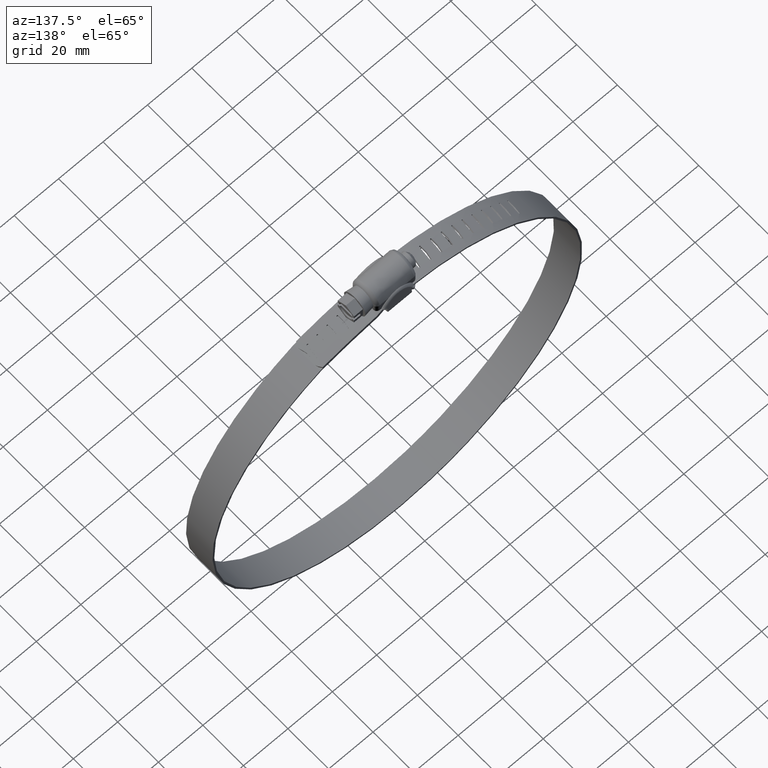
[diagram: clean part render]
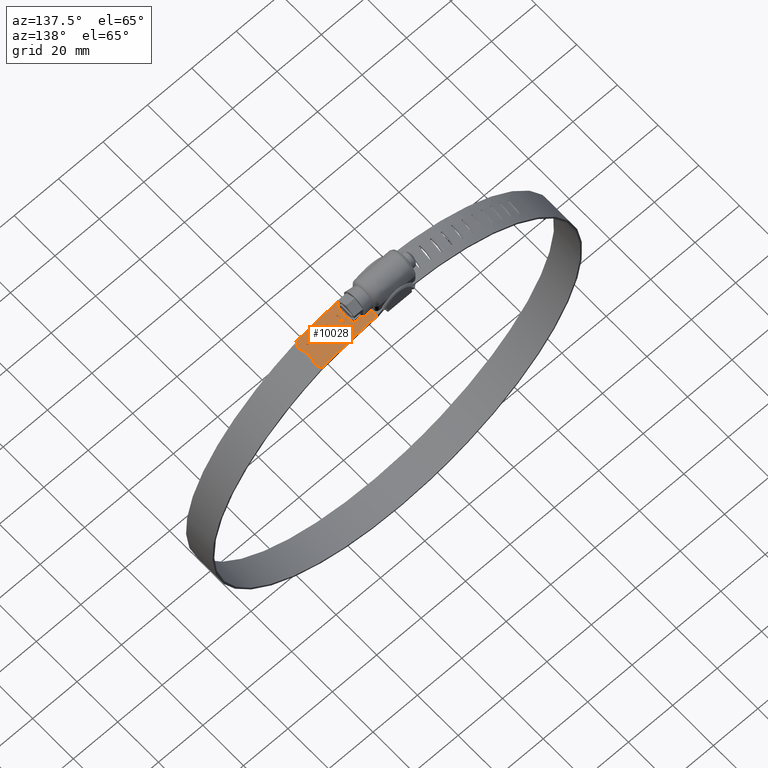
[diagram: same view with one face highlighted and labeled with its STEP entity id]
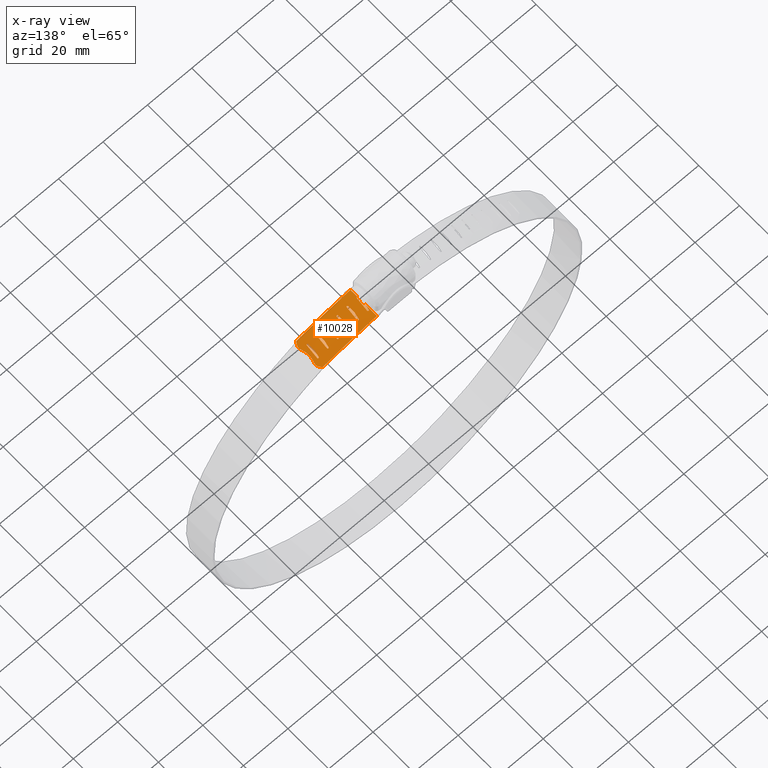
[diagram: x-ray of the same camera — body ghosted, the highlighted face saturated]
A machine part, auxiliary view. The second image highlights one B-rep face of the part: STEP entity #10028.
The next image is the same camera in x-ray: the body ghosted, the highlighted face saturated — about 0% of this face is hidden behind the body in this view.
In plain terms, the highlighted face is a freeform B-spline surface patch.
Its self-contained STEP definition (entity closure, byte-faithful):
#7805=CARTESIAN_POINT('',(9.228905331838051,0.843104450140131,10.888232597811941));
#7806=VERTEX_POINT('',#7805);
#7827=CARTESIAN_POINT('',(9.665189729579639,2.945789797907085,10.831508081720941));
#7828=VERTEX_POINT('',#7827);
#7834=CARTESIAN_POINT('',(9.228905331838051,0.843104450140131,10.888232597811941));
#7835=CARTESIAN_POINT('',(9.665189729579639,2.945789797907085,10.831508081720941));
#7836=QUASI_UNIFORM_CURVE('',1,(#7834,#7835),.UNSPECIFIED.,.F.,.U.);
#7837=EDGE_CURVE('',#7806,#7828,#7836,.T.);
#7860=CARTESIAN_POINT('',(9.228905331838060,-3.075402944622775,10.888232597811941));
#7861=VERTEX_POINT('',#7860);
#7862=CARTESIAN_POINT('',(9.678803098131210,-2.816663183151551,10.829720228127661));
#7863=VERTEX_POINT('',#7862);
#7864=CARTESIAN_POINT('',(9.228905331838060,-3.075402944622775,10.888232597811941));
#7865=CARTESIAN_POINT('',(9.296222222031219,-3.116619409382341,10.879527963930910));
#7866=CARTESIAN_POINT('',(9.436156065842745,-3.135590504013661,10.861391291129580));
#7867=CARTESIAN_POINT('',(9.624636665550463,-3.027060240339219,10.836877978884290));
#7868=CARTESIAN_POINT('',(9.679727966873225,-2.896114508719616,10.829650376694341));
#7869=CARTESIAN_POINT('',(9.678803098131210,-2.816663183151551,10.829720228127661));
#7870=B_SPLINE_CURVE_WITH_KNOTS('',3,(#7864,#7865,#7866,#7867,#7868,#7869),.UNSPECIFIED.,.F.,.U.,(4,1,1,4),(0.000001302570622,0.237665575789798,0.396087299968962,0.633751573187974),.UNSPECIFIED.);
#7871=EDGE_CURVE('',#7861,#7863,#7870,.T.);
#7930=CARTESIAN_POINT('',(10.247408693806680,2.822926770005940,10.754077619465180));
#7931=VERTEX_POINT('',#7930);
#7932=CARTESIAN_POINT('',(10.017228086626870,3.178002663087208,10.784926607587600));
#7933=VERTEX_POINT('',#7932);
#7934=CARTESIAN_POINT('',(10.247408693806680,2.822926770005940,10.754077619465180));
#7935=CARTESIAN_POINT('',(10.255416439734820,2.861337153375656,10.753043635782500));
#7936=CARTESIAN_POINT('',(10.256304689172030,2.951467408772530,10.752995287347780));
#7937=CARTESIAN_POINT('',(10.189257713634831,3.098495293576202,10.762014663868641));
#7938=CARTESIAN_POINT('',(10.084076412007770,3.164279445415259,10.776036611951060));
#7939=CARTESIAN_POINT('',(10.017228086626870,3.178002663087208,10.784926607587600));
#7940=B_SPLINE_CURVE_WITH_KNOTS('',3,(#7934,#7935,#7936,#7937,#7938,#7939),.UNSPECIFIED.,.F.,.U.,(4,1,1,4),(0.000001718368755,0.117865041784679,0.265174512415338,0.471454926335175),.UNSPECIFIED.);
#7941=EDGE_CURVE('',#7931,#7933,#7940,.T.);
#7943=CARTESIAN_POINT('',(10.017228086626870,3.178002663087208,10.784926607587600));
#7944=CARTESIAN_POINT('',(9.950533364247796,3.192461395902720,10.793796769193071));
#7945=CARTESIAN_POINT('',(9.828019213670837,3.174746604593981,10.810056509130970));
#7946=CARTESIAN_POINT('',(9.708148144081722,3.067126889752813,10.825895708505749));
#7947=CARTESIAN_POINT('',(9.673135792913644,2.984221834808071,10.830482308002630));
#7948=CARTESIAN_POINT('',(9.665189729579639,2.945789797907085,10.831508081720941));
#7949=B_SPLINE_CURVE_WITH_KNOTS('',3,(#7943,#7944,#7945,#7946,#7947,#7948),.UNSPECIFIED.,.F.,.U.,(4,1,1,4),(0.000001536060053,0.206285889867341,0.353598503918952,0.471464314481112),.UNSPECIFIED.);
#7950=EDGE_CURVE('',#7933,#7828,#7949,.T.);
#7995=CARTESIAN_POINT('',(10.247408693806680,2.822926770005940,10.754077619465180));
#7996=CARTESIAN_POINT('',(9.678803098131210,-2.816663183151551,10.829720228127661));
#7997=QUASI_UNIFORM_CURVE('',1,(#7995,#7996),.UNSPECIFIED.,.F.,.U.);
#7998=EDGE_CURVE('',#7931,#7863,#7997,.T.);
#8010=CARTESIAN_POINT('',(13.643409397469441,-2.756288859707695,10.262840676392161));
#8011=VERTEX_POINT('',#8010);
#8024=CARTESIAN_POINT('',(13.639960798424440,0.0,10.263373924416900));
#8025=VERTEX_POINT('',#8024);
#8031=CARTESIAN_POINT('',(13.643409397469441,-2.756288859707695,10.262840676392161));
#8032=CARTESIAN_POINT('',(13.639960798424440,0.0,10.263373924416900));
#8033=QUASI_UNIFORM_CURVE('',1,(#8031,#8032),.UNSPECIFIED.,.F.,.U.);
#8034=EDGE_CURVE('',#8011,#8025,#8033,.T.);
#8052=CARTESIAN_POINT('',(13.671377181232900,0.309055427733710,10.258513498428879));
#8053=VERTEX_POINT('',#8052);
#8059=CARTESIAN_POINT('',(13.639960798424440,0.0,10.263373924416900));
#8060=CARTESIAN_POINT('',(13.671377181232900,0.309055427733710,10.258513498428879));
#8061=QUASI_UNIFORM_CURVE('',1,(#8059,#8060),.UNSPECIFIED.,.F.,.U.);
#8062=EDGE_CURVE('',#8025,#8053,#8061,.T.);
#8080=CARTESIAN_POINT('',(14.216451617002900,2.945789797907085,10.173257875967000));
#8081=VERTEX_POINT('',#8080);
#8087=CARTESIAN_POINT('',(13.671377181232900,0.309055427733710,10.258513498428879));
#8088=CARTESIAN_POINT('',(14.216451617002900,2.945789797907085,10.173257875967000));
#8089=QUASI_UNIFORM_CURVE('',1,(#8087,#8088),.UNSPECIFIED.,.F.,.U.);
#8090=EDGE_CURVE('',#8053,#8081,#8089,.T.);
#8113=CARTESIAN_POINT('',(14.796444176124300,2.822926770005940,10.080613231466520));
#8114=VERTEX_POINT('',#8113);
#8115=CARTESIAN_POINT('',(14.567149978457349,3.178002663087217,10.117477074266830));
#8116=VERTEX_POINT('',#8115);
#8117=CARTESIAN_POINT('',(14.796444176124300,2.822926770005940,10.080613231466520));
#8118=CARTESIAN_POINT('',(14.810733014392961,2.890213339393183,10.078385349626981));
#8119=CARTESIAN_POINT('',(14.793223983901891,3.013784200743775,10.081275103660699));
#8120=CARTESIAN_POINT('',(14.686979275523790,3.134701916418984,10.098322342618969));
#8121=CARTESIAN_POINT('',(14.605103219159041,3.169990317699527,10.111414665422981));
#8122=CARTESIAN_POINT('',(14.567149978457349,3.178002663087217,10.117477074266830));
#8123=B_SPLINE_CURVE_WITH_KNOTS('',3,(#8117,#8118,#8119,#8120,#8121,#8122),.UNSPECIFIED.,.F.,.U.,(4,1,1,4),(0.000001718368684,0.206281853594941,0.353591425196685,0.471454926335103),.UNSPECIFIED.);
#8124=EDGE_CURVE('',#8114,#8116,#8123,.T.);
#8126=CARTESIAN_POINT('',(14.567149978457349,3.178002663087217,10.117477074266830));
#8127=CARTESIAN_POINT('',(14.529204304995821,3.186074302871383,10.123538321948530));
#8128=CARTESIAN_POINT('',(14.440225758983130,3.186976773013146,10.137737319797960));
#8129=CARTESIAN_POINT('',(14.295002232329409,3.119327391158661,10.160858155695680));
#8130=CARTESIAN_POINT('',(14.230014912976870,3.013228305564561,10.171145886678820));
#8131=CARTESIAN_POINT('',(14.216451617002900,2.945789797907085,10.173257875967000));
#8132=B_SPLINE_CURVE_WITH_KNOTS('',3,(#8126,#8127,#8128,#8129,#8130,#8131),.UNSPECIFIED.,.F.,.U.,(4,1,1,4),(0.000001536060194,0.117867250942255,0.265179810768801,0.471464314481323),.UNSPECIFIED.);
#8133=EDGE_CURVE('',#8116,#8081,#8132,.T.);
#8179=CARTESIAN_POINT('',(14.230013520042020,-2.816663183151551,10.171114278581740));
#8180=VERTEX_POINT('',#8179);
#8186=CARTESIAN_POINT('',(14.796444176124300,2.822926770005940,10.080613231466520));
#8187=CARTESIAN_POINT('',(14.230013520042020,-2.816663183151551,10.171114278581740));
#8188=QUASI_UNIFORM_CURVE('',1,(#8186,#8187),.UNSPECIFIED.,.F.,.U.);
#8189=EDGE_CURVE('',#8114,#8180,#8188,.T.);
#8212=CARTESIAN_POINT('',(13.903621574296210,-3.116181006647304,10.222402355590500));
#8213=VERTEX_POINT('',#8212);
#8214=CARTESIAN_POINT('',(13.643409397469441,-2.756288859707695,10.262840676392161));
#8215=CARTESIAN_POINT('',(13.637075481451070,-2.787028868773097,10.263856856994900));
#8216=CARTESIAN_POINT('',(13.632849382643441,-2.871818665026651,10.264586712210960));
#8217=CARTESIAN_POINT('',(13.675459238562180,-2.982864004489461,10.258006949133829));
#8218=CARTESIAN_POINT('',(13.772133493348431,-3.080018626508819,10.242953788843360));
#8219=CARTESIAN_POINT('',(13.852135889934290,-3.111002898467508,10.230456751627919));
#8220=CARTESIAN_POINT('',(13.903621574296210,-3.116181006647304,10.222402355590500));
#8221=B_SPLINE_CURVE_WITH_KNOTS('',3,(#8214,#8215,#8216,#8217,#8218,#8219,#8220),.UNSPECIFIED.,.F.,.U.,(4,1,1,1,4),(0.000002011264623,0.094292593028235,0.251474994011035,0.345765575771219,0.502947976750621),.UNSPECIFIED.);
#8222=EDGE_CURVE('',#8011,#8213,#8221,.T.);
#8224=CARTESIAN_POINT('',(13.903621574296210,-3.116181006647304,10.222402355590500));
#8225=CARTESIAN_POINT('',(13.955062566266539,-3.121564195652212,10.214362235480040));
#8226=CARTESIAN_POINT('',(14.071480065236850,-3.102496571524469,10.196140789367000));
#8227=CARTESIAN_POINT('',(14.200160125460769,-2.984395631635267,10.175920446281850));
#8228=CARTESIAN_POINT('',(14.230284056849120,-2.869018044705972,10.171114914820750));
#8229=CARTESIAN_POINT('',(14.230013520042020,-2.816663183151551,10.171114278581740));
#8230=B_SPLINE_CURVE_WITH_KNOTS('',3,(#8224,#8225,#8226,#8227,#8228,#8229),.UNSPECIFIED.,.F.,.U.,(4,1,1,4),(0.000001999778633,0.157187688331394,0.345772791673234,0.502958476869209),.UNSPECIFIED.);
#8231=EDGE_CURVE('',#8213,#8180,#8230,.T.);
#8265=CARTESIAN_POINT('',(18.178422071097149,-2.756288859707695,9.500647688151400));
#8266=VERTEX_POINT('',#8265);
#8279=CARTESIAN_POINT('',(18.174988612606850,0.0,9.501271027244300));
#8280=VERTEX_POINT('',#8279);
#8286=CARTESIAN_POINT('',(18.178422071097149,-2.756288859707695,9.500647688151400));
#8287=CARTESIAN_POINT('',(18.174988612606850,0.0,9.501271027244300));
#8288=QUASI_UNIFORM_CURVE('',1,(#8286,#8287),.UNSPECIFIED.,.F.,.U.);
#8289=EDGE_CURVE('',#8266,#8280,#8288,.T.);
#8307=CARTESIAN_POINT('',(18.206266998685798,0.309055427733710,9.495589881774571));
#8308=VERTEX_POINT('',#8307);
#8314=CARTESIAN_POINT('',(18.174988612606850,0.0,9.501271027244300));
#8315=CARTESIAN_POINT('',(18.206266998685798,0.309055427733710,9.495589881774571));
#8316=QUASI_UNIFORM_CURVE('',1,(#8314,#8315),.UNSPECIFIED.,.F.,.U.);
#8317=EDGE_CURVE('',#8280,#8308,#8316,.T.);
#8335=CARTESIAN_POINT('',(18.748922919038101,2.945789797907085,9.396095088955999));
#8336=VERTEX_POINT('',#8335);
#8342=CARTESIAN_POINT('',(18.206266998685798,0.309055427733710,9.495589881774571));
#8343=CARTESIAN_POINT('',(18.748922919038101,2.945789797907085,9.396095088955999));
#8344=QUASI_UNIFORM_CURVE('',1,(#8342,#8343),.UNSPECIFIED.,.F.,.U.);
#8345=EDGE_CURVE('',#8308,#8336,#8344,.T.);
#8368=CARTESIAN_POINT('',(19.326291575125001,2.822926770005940,9.288299756222219));
#8369=VERTEX_POINT('',#8368);
#8370=CARTESIAN_POINT('',(19.098040933760011,3.178002663087205,9.331153189063986));
#8371=VERTEX_POINT('',#8370);
#8372=CARTESIAN_POINT('',(19.326291575125001,2.822926770005940,9.288299756222219));
#8373=CARTESIAN_POINT('',(19.340513055937219,2.890204429709605,9.285699365306572));
#8374=CARTESIAN_POINT('',(19.323102209257229,3.013801590669120,9.289043397470705));
#8375=CARTESIAN_POINT('',(19.217319293643090,3.134687641763829,9.308869823336689));
#8376=CARTESIAN_POINT('',(19.135818966631980,3.169994327374175,9.324100014909355));
#8377=CARTESIAN_POINT('',(19.098040933760011,3.178002663087205,9.331153189063986));
#8378=B_SPLINE_CURVE_WITH_KNOTS('',3,(#8372,#8373,#8374,#8375,#8376,#8377),.UNSPECIFIED.,.F.,.U.,(4,1,1,4),(0.000001718368779,0.206281853594985,0.353591425196742,0.471454926335188),.UNSPECIFIED.);
#8379=EDGE_CURVE('',#8369,#8371,#8378,.T.);
#8381=CARTESIAN_POINT('',(19.098040933760011,3.178002663087205,9.331153189063986));
#8382=CARTESIAN_POINT('',(19.031905026836370,3.192464498913179,9.343501134932877));
#8383=CARTESIAN_POINT('',(18.910399926851731,3.174741346215759,9.366152311916281));
#8384=CARTESIAN_POINT('',(18.791533411068919,3.067129852911541,9.388241267025654));
#8385=CARTESIAN_POINT('',(18.756802962685160,2.984221033100900,9.394655125127333));
#8386=CARTESIAN_POINT('',(18.748922919038101,2.945789797907085,9.396095088955999));
#8387=B_SPLINE_CURVE_WITH_KNOTS('',3,(#8381,#8382,#8383,#8384,#8385,#8386),.UNSPECIFIED.,.F.,.U.,(4,1,1,4),(0.000001536060173,0.206285889867392,0.353598503918967,0.471464314481125),.UNSPECIFIED.);
#8388=EDGE_CURVE('',#8371,#8336,#8387,.T.);
#8434=CARTESIAN_POINT('',(18.762424061913801,-2.816663183151551,9.393597216893369));
#8435=VERTEX_POINT('',#8434);
#8441=CARTESIAN_POINT('',(19.326291575125001,2.822926770005940,9.288299756222219));
#8442=CARTESIAN_POINT('',(18.762424061913801,-2.816663183151551,9.393597216893369));
#8443=QUASI_UNIFORM_CURVE('',1,(#8441,#8442),.UNSPECIFIED.,.F.,.U.);
#8444=EDGE_CURVE('',#8369,#8435,#8443,.T.);
#8467=CARTESIAN_POINT('',(18.437486527876398,-3.116181006647306,9.453411663850851));
#8468=VERTEX_POINT('',#8467);
#8469=CARTESIAN_POINT('',(18.178422071097149,-2.756288859707695,9.500647688151400));
#8470=CARTESIAN_POINT('',(18.167807165930121,-2.807506626976335,9.502636574315233));
#8471=CARTESIAN_POINT('',(18.174381464207048,-2.926683268186210,9.501527008878494));
#8472=CARTESIAN_POINT('',(18.276494239529310,-3.068568372880748,9.482908494874861));
#8473=CARTESIAN_POINT('',(18.386263424687161,-3.110974069647799,9.462804758876203));
#8474=CARTESIAN_POINT('',(18.437486527876398,-3.116181006647306,9.453411663850851));
#8475=B_SPLINE_CURVE_WITH_KNOTS('',3,(#8469,#8470,#8471,#8472,#8473,#8474),.UNSPECIFIED.,.F.,.U.,(4,1,1,4),(0.000002011264681,0.157184412245294,0.345765575771088,0.502947976750467),.UNSPECIFIED.);
#8476=EDGE_CURVE('',#8266,#8468,#8475,.T.);
#8478=CARTESIAN_POINT('',(18.437486527876398,-3.116181006647306,9.453411663850851));
#8479=CARTESIAN_POINT('',(18.499036030542609,-3.122850132850209,9.442133879937520));
#8480=CARTESIAN_POINT('',(18.593989339099270,-3.101448546440763,9.424709369968108));
#8481=CARTESIAN_POINT('',(18.723381230450009,-2.994254953048398,9.400900881674426));
#8482=CARTESIAN_POINT('',(18.763214616937759,-2.890165642328348,9.393512850707007));
#8483=CARTESIAN_POINT('',(18.762424061913801,-2.816663183151551,9.393597216893369));
#8484=B_SPLINE_CURVE_WITH_KNOTS('',3,(#8478,#8479,#8480,#8481,#8482,#8483),.UNSPECIFIED.,.F.,.U.,(4,1,1,4),(0.000001999778770,0.188639045526504,0.282883459188585,0.502958476869465),.UNSPECIFIED.);
#8485=EDGE_CURVE('',#8468,#8435,#8484,.T.);
#8519=CARTESIAN_POINT('',(22.691928822692301,-2.756288859707695,8.620003092078779));
#8520=VERTEX_POINT('',#8519);
#8533=CARTESIAN_POINT('',(22.688512857877651,0.0,8.620716095034229));
#8534=VERTEX_POINT('',#8533);
#8540=CARTESIAN_POINT('',(22.691928822692301,-2.756288859707695,8.620003092078779));
#8541=CARTESIAN_POINT('',(22.688512857877651,0.0,8.620716095034229));
#8542=QUASI_UNIFORM_CURVE('',1,(#8540,#8541),.UNSPECIFIED.,.F.,.U.);
#8543=EDGE_CURVE('',#8520,#8534,#8542,.T.);
#8561=CARTESIAN_POINT('',(22.719631810583650,0.309055427733710,8.614218123655819));
#8562=VERTEX_POINT('',#8561);
#8568=CARTESIAN_POINT('',(22.688512857877651,0.0,8.620716095034229));
#8569=CARTESIAN_POINT('',(22.719631810583650,0.309055427733710,8.614218123655819));
#8570=QUASI_UNIFORM_CURVE('',1,(#8568,#8569),.UNSPECIFIED.,.F.,.U.);
#8571=EDGE_CURVE('',#8534,#8562,#8570,.T.);
#8589=CARTESIAN_POINT('',(23.259497306256598,2.945789797907085,8.500552349241740));
#8590=VERTEX_POINT('',#8589);
#8596=CARTESIAN_POINT('',(22.719631810583650,0.309055427733710,8.614218123655819));
#8597=CARTESIAN_POINT('',(23.259497306256598,2.945789797907085,8.500552349241740));
#8598=QUASI_UNIFORM_CURVE('',1,(#8596,#8597),.UNSPECIFIED.,.F.,.U.);
#8599=EDGE_CURVE('',#8562,#8590,#8598,.T.);
#8622=CARTESIAN_POINT('',(23.833846359672350,2.822926770005940,8.377680205811139));
#8623=VERTEX_POINT('',#8622);
#8624=CARTESIAN_POINT('',(23.606795706198081,3.178002663087213,8.426493859092034));
#8625=VERTEX_POINT('',#8624);
#8626=CARTESIAN_POINT('',(23.833846359672350,2.822926770005940,8.377680205811139));
#8627=CARTESIAN_POINT('',(23.841742760253389,2.861354220243925,8.376022325547528));
#8628=CARTESIAN_POINT('',(23.842636596525761,2.951453006229893,8.375901819769648));
#8629=CARTESIAN_POINT('',(23.776493543066351,3.098505020141070,8.390156082577478));
#8630=CARTESIAN_POINT('',(23.672740763338489,3.164275920689611,8.412386341470445));
#8631=CARTESIAN_POINT('',(23.606795706198081,3.178002663087213,8.426493859092034));
#8632=B_SPLINE_CURVE_WITH_KNOTS('',3,(#8626,#8627,#8628,#8629,#8630,#8631),.UNSPECIFIED.,.F.,.U.,(4,1,1,4),(0.000001718368532,0.117865041784502,0.265174512415208,0.471454926335083),.UNSPECIFIED.);
#8633=EDGE_CURVE('',#8623,#8625,#8632,.T.);
#8635=CARTESIAN_POINT('',(23.606795706198081,3.178002663087213,8.426493859092034));
#8636=CARTESIAN_POINT('',(23.569227556250969,3.186076032031085,8.434530950445941));
#8637=CARTESIAN_POINT('',(23.481104968676771,3.186961743943756,8.453369198855151));
#8638=CARTESIAN_POINT('',(23.337286316321549,3.119345749681119,8.484059684669239));
#8639=CARTESIAN_POINT('',(23.272935295418321,3.013221042098896,8.497732585265950));
#8640=CARTESIAN_POINT('',(23.259497306256598,2.945789797907085,8.500552349241740));
#8641=B_SPLINE_CURVE_WITH_KNOTS('',3,(#8635,#8636,#8637,#8638,#8639,#8640),.UNSPECIFIED.,.F.,.U.,(4,1,1,4),(0.000001536060176,0.117867250942237,0.265179810768816,0.471464314481326),.UNSPECIFIED.);
#8642=EDGE_CURVE('',#8625,#8590,#8641,.T.);
#8688=CARTESIAN_POINT('',(23.272928435959951,-2.816663183151551,8.497701914418009));
#8689=VERTEX_POINT('',#8688);
#8695=CARTESIAN_POINT('',(23.833846359672350,2.822926770005940,8.377680205811139));
#8696=CARTESIAN_POINT('',(23.272928435959951,-2.816663183151551,8.497701914418009));
#8697=QUASI_UNIFORM_CURVE('',1,(#8695,#8696),.UNSPECIFIED.,.F.,.U.);
#8698=EDGE_CURVE('',#8623,#8689,#8697,.T.);
#8721=CARTESIAN_POINT('',(22.949668009585999,-3.116181006647304,8.566001737490504));
#8722=VERTEX_POINT('',#8721);
#8723=CARTESIAN_POINT('',(22.691928822692301,-2.756288859707695,8.620003092078779));
#8724=CARTESIAN_POINT('',(22.683497962379871,-2.797293855575952,8.621812496938498));
#8725=CARTESIAN_POINT('',(22.683863501074590,-2.882936644916641,8.621805232189960));
#8726=CARTESIAN_POINT('',(22.731103194198731,-2.990324080778579,8.611941332786540));
#8727=CARTESIAN_POINT('',(22.819426387267360,-3.080022214914567,8.593408526435818));
#8728=CARTESIAN_POINT('',(22.898668806394841,-3.111000508366843,8.576740828184592));
#8729=CARTESIAN_POINT('',(22.949668009585999,-3.116181006647304,8.566001737490504));
#8730=B_SPLINE_CURVE_WITH_KNOTS('',3,(#8723,#8724,#8725,#8726,#8727,#8728,#8729),.UNSPECIFIED.,.F.,.U.,(4,1,1,1,4),(0.000002011264597,0.125738502636198,0.251474994010896,0.345765575771044,0.502947976750389),.UNSPECIFIED.);
#8731=EDGE_CURVE('',#8520,#8722,#8730,.T.);
#8733=CARTESIAN_POINT('',(22.949668009585999,-3.116181006647304,8.566001737490504));
#8734=CARTESIAN_POINT('',(23.021199321806051,-3.124155210795935,8.550949793013988));
#8735=CARTESIAN_POINT('',(23.126406768943859,-3.094022177887342,8.528776895017899));
#8736=CARTESIAN_POINT('',(23.243385003895138,-2.973571581854761,8.504051250351385));
#8737=CARTESIAN_POINT('',(23.273442589681050,-2.879590022402482,8.497645789734959));
#8738=CARTESIAN_POINT('',(23.272928435959951,-2.816663183151551,8.497701914418009));
#8739=B_SPLINE_CURVE_WITH_KNOTS('',3,(#8733,#8734,#8735,#8736,#8737,#8738),.UNSPECIFIED.,.F.,.U.,(4,1,1,4),(0.000001999778717,0.220077028271334,0.314321437505828,0.502958476869573),.UNSPECIFIED.);
#8740=EDGE_CURVE('',#8722,#8689,#8739,.T.);
#8775=CARTESIAN_POINT('',(27.180836320181950,-2.756288859707695,7.621510437990640));
#8776=VERTEX_POINT('',#8775);
#8789=CARTESIAN_POINT('',(27.177440190174750,0.0,7.622312616152320));
#8790=VERTEX_POINT('',#8789);
#8796=CARTESIAN_POINT('',(27.180836320181950,-2.756288859707695,7.621510437990640));
#8797=CARTESIAN_POINT('',(27.177440190174750,0.0,7.622312616152320));
#8798=QUASI_UNIFORM_CURVE('',1,(#8796,#8797),.UNSPECIFIED.,.F.,.U.);
#8799=EDGE_CURVE('',#8776,#8790,#8798,.T.);
#8817=CARTESIAN_POINT('',(27.208378382131801,0.309055427733710,7.615002272249430));
#8818=VERTEX_POINT('',#8817);
#8824=CARTESIAN_POINT('',(27.177440190174750,0.0,7.622312616152320));
#8825=CARTESIAN_POINT('',(27.208378382131801,0.309055427733710,7.615002272249430));
#8826=QUASI_UNIFORM_CURVE('',1,(#8824,#8825),.UNSPECIFIED.,.F.,.U.);
#8827=EDGE_CURVE('',#8790,#8818,#8826,.T.);
#8845=CARTESIAN_POINT('',(27.745083456281652,2.945789797907085,7.487243417083961));
#8846=VERTEX_POINT('',#8845);
#8852=CARTESIAN_POINT('',(27.208378382131801,0.309055427733710,7.615002272249430));
#8853=CARTESIAN_POINT('',(27.745083456281652,2.945789797907085,7.487243417083961));
#8854=QUASI_UNIFORM_CURVE('',1,(#8852,#8853),.UNSPECIFIED.,.F.,.U.);
#8855=EDGE_CURVE('',#8818,#8846,#8854,.T.);
#8878=CARTESIAN_POINT('',(28.316019276874599,2.822926770005940,7.349378673386920));
#8879=VERTEX_POINT('',#8878);
#8880=CARTESIAN_POINT('',(28.090324220466929,3.178002663087203,7.404119092667251));
#8881=VERTEX_POINT('',#8880);
#8882=CARTESIAN_POINT('',(28.316019276874599,2.822926770005940,7.349378673386920));
#8883=CARTESIAN_POINT('',(28.330084406735740,2.890203242317388,7.346037735552823));
#8884=CARTESIAN_POINT('',(28.312874898123400,3.013802104984799,7.350287804923187));
#8885=CARTESIAN_POINT('',(28.208270540075969,3.134688986632858,7.375624287138517));
#8886=CARTESIAN_POINT('',(28.127682088958402,3.169994029215089,7.395098255472694));
#8887=CARTESIAN_POINT('',(28.090324220466929,3.178002663087203,7.404119092667251));
#8888=B_SPLINE_CURVE_WITH_KNOTS('',3,(#8882,#8883,#8884,#8885,#8886,#8887),.UNSPECIFIED.,.F.,.U.,(4,1,1,4),(0.000001718368814,0.206281853595041,0.353591425196774,0.471454926335188),.UNSPECIFIED.);
#8889=EDGE_CURVE('',#8879,#8881,#8888,.T.);
#8891=CARTESIAN_POINT('',(28.090324220466929,3.178002663087203,7.404119092667251));
#8892=CARTESIAN_POINT('',(28.052970095378821,3.186073440897852,7.413139075892381));
#8893=CARTESIAN_POINT('',(27.965383354090982,3.186978564820203,7.434274643270901));
#8894=CARTESIAN_POINT('',(27.822415682626740,3.119326503052915,7.468719723930842));
#8895=CARTESIAN_POINT('',(27.758443485723841,3.013228605993555,7.484072749276183));
#8896=CARTESIAN_POINT('',(27.745083456281652,2.945789797907085,7.487243417083961));
#8897=B_SPLINE_CURVE_WITH_KNOTS('',3,(#8891,#8892,#8893,#8894,#8895,#8896),.UNSPECIFIED.,.F.,.U.,(4,1,1,4),(0.000001536060109,0.117867250942122,0.265179810768659,0.471464314481132),.UNSPECIFIED.);
#8898=EDGE_CURVE('',#8881,#8846,#8897,.T.);
#8944=CARTESIAN_POINT('',(27.758435367787349,-2.816663183151551,7.484042373045450));
#8945=VERTEX_POINT('',#8944);
#8951=CARTESIAN_POINT('',(28.316019276874599,2.822926770005940,7.349378673386920));
#8952=CARTESIAN_POINT('',(27.758435367787349,-2.816663183151551,7.484042373045450));
#8953=QUASI_UNIFORM_CURVE('',1,(#8951,#8952),.UNSPECIFIED.,.F.,.U.);
#8954=EDGE_CURVE('',#8879,#8945,#8953,.T.);
#8977=CARTESIAN_POINT('',(27.437073595625961,-3.116181006647307,7.560780762945865));
#8978=VERTEX_POINT('',#8977);
#8979=CARTESIAN_POINT('',(27.180836320181950,-2.756288859707695,7.621510437990640));
#8980=CARTESIAN_POINT('',(27.168045852126010,-2.817854021214952,7.624606992865986));
#8981=CARTESIAN_POINT('',(27.178921735416470,-2.916023261002922,7.622097244863627));
#8982=CARTESIAN_POINT('',(27.269297853947201,-3.058189657418599,7.600690071932719));
#8983=CARTESIAN_POINT('',(27.365882144686520,-3.109198751530673,7.577729719114946));
#8984=CARTESIAN_POINT('',(27.437073595625961,-3.116181006647307,7.560780762945865));
#8985=B_SPLINE_CURVE_WITH_KNOTS('',3,(#8979,#8980,#8981,#8982,#8983,#8984),.UNSPECIFIED.,.F.,.U.,(4,1,1,4),(0.000002011264456,0.188635109479828,0.282877555331906,0.502947976750418),.UNSPECIFIED.);
#8986=EDGE_CURVE('',#8776,#8978,#8985,.T.);
#8988=CARTESIAN_POINT('',(27.437073595625961,-3.116181006647307,7.560780762945865));
#8989=CARTESIAN_POINT('',(27.487751663468270,-3.121598154644926,7.548723141727380));
#8990=CARTESIAN_POINT('',(27.581365472860121,-3.105821354213079,7.526428520156585));
#8991=CARTESIAN_POINT('',(27.715933287023311,-3.004709970385153,7.494315149741858));
#8992=CARTESIAN_POINT('',(27.759162308771469,-2.890159453883674,7.483930575159958));
#8993=CARTESIAN_POINT('',(27.758435367787349,-2.816663183151551,7.484042373045450));
#8994=B_SPLINE_CURVE_WITH_KNOTS('',3,(#8988,#8989,#8990,#8991,#8992,#8993),.UNSPECIFIED.,.F.,.U.,(4,1,1,4),(0.000001999778618,0.157187688331483,0.282883459188653,0.502958476869571),.UNSPECIFIED.);
#8995=EDGE_CURVE('',#8978,#8945,#8994,.T.);
#9036=CARTESIAN_POINT('',(34.244883844065697,-2.061301204482560,5.797201535512300));
#9037=VERTEX_POINT('',#9036);
#9038=CARTESIAN_POINT('',(34.244883844065747,2.061301204482695,5.797201535512279));
#9039=VERTEX_POINT('',#9038);
#9040=CARTESIAN_POINT('',(34.244883844065697,-2.061301204482560,5.797201535512300));
#9041=CARTESIAN_POINT('',(34.083065434379193,-1.431818243664933,5.842472055748947));
#9042=CARTESIAN_POINT('',(33.897252495490967,-0.044906456735750,5.894455315419327));
#9043=CARTESIAN_POINT('',(34.061414149658539,1.347904529344990,5.848529246182339));
#9044=CARTESIAN_POINT('',(34.244883844065747,2.061301204482695,5.797201535512279));
#9045=B_SPLINE_CURVE_WITH_KNOTS('',3,(#9040,#9041,#9042,#9043,#9044),.UNSPECIFIED.,.F.,.U.,(4,1,4),(0.000000026005432,1.954554241062837,4.169685108596248),.UNSPECIFIED.);
#9046=EDGE_CURVE('',#9037,#9039,#9045,.T.);
#9087=CARTESIAN_POINT('',(34.660812765768348,3.681800700683090,5.679969393964010));
#9088=VERTEX_POINT('',#9087);
#9089=CARTESIAN_POINT('',(34.451520392430012,5.226117512658741,5.739097802032630));
#9090=VERTEX_POINT('',#9089);
#9091=CARTESIAN_POINT('',(34.660812765768348,3.681800700683090,5.679969393964010));
#9092=CARTESIAN_POINT('',(34.698069642819988,3.826915791536982,5.669436943994023));
#9093=CARTESIAN_POINT('',(34.748162176225883,4.175750488621238,5.655273391808889));
#9094=CARTESIAN_POINT('',(34.688584222837967,4.712239491580597,5.672103539935164));
#9095=CARTESIAN_POINT('',(34.542454987388417,5.068735506582644,5.713399033853905));
#9096=CARTESIAN_POINT('',(34.451520392430012,5.226117512658741,5.739097802032630));
#9097=B_SPLINE_CURVE_WITH_KNOTS('',3,(#9091,#9092,#9093,#9094,#9095,#9096),.UNSPECIFIED.,.F.,.U.,(4,1,1,4),(0.000000123498555,0.450593877961143,1.051369866968615,1.602096516209151),.UNSPECIFIED.);
#9098=EDGE_CURVE('',#9088,#9090,#9097,.T.);
#9139=CARTESIAN_POINT('',(34.451520392430062,-5.226117512658770,5.739097802032579));
#9140=VERTEX_POINT('',#9139);
#9141=CARTESIAN_POINT('',(34.660812765768313,-3.681800700682960,5.679969393964010));
#9142=VERTEX_POINT('',#9141);
#9143=CARTESIAN_POINT('',(34.451520392430062,-5.226117512658770,5.739097802032579));
#9144=CARTESIAN_POINT('',(34.550726203800117,-5.054433973446783,5.711044611547652));
#9145=CARTESIAN_POINT('',(34.748419222123857,-4.554911236179954,5.655148733357160));
#9146=CARTESIAN_POINT('',(34.744388349299740,-4.004260405377551,5.656314427440310));
#9147=CARTESIAN_POINT('',(34.660812765768313,-3.681800700682960,5.679969393964010));
#9148=B_SPLINE_CURVE_WITH_KNOTS('',3,(#9143,#9144,#9145,#9146,#9147),.UNSPECIFIED.,.F.,.U.,(4,1,4),(0.000000123498983,0.600806487550575,1.602096492425189),.UNSPECIFIED.);
#9149=EDGE_CURVE('',#9140,#9142,#9148,.T.);
#9189=CARTESIAN_POINT('',(33.715395216845742,-6.499999999999840,5.944845129064350));
#9190=VERTEX_POINT('',#9189);
#9191=CARTESIAN_POINT('',(33.715395216845742,-6.499999999999840,5.944845129064350));
#9192=CARTESIAN_POINT('',(34.451520392430062,-5.226117512658770,5.739097802032579));
#9193=QUASI_UNIFORM_CURVE('',1,(#9191,#9192),.UNSPECIFIED.,.F.,.U.);
#9194=EDGE_CURVE('',#9190,#9140,#9193,.T.);
#9209=CARTESIAN_POINT('',(33.715395216845700,6.500000000000000,5.944845129064130));
#9210=VERTEX_POINT('',#9209);
#9211=CARTESIAN_POINT('',(34.451520392430012,5.226117512658741,5.739097802032630));
#9212=CARTESIAN_POINT('',(33.715395216845700,6.500000000000000,5.944845129064130));
#9213=QUASI_UNIFORM_CURVE('',1,(#9211,#9212),.UNSPECIFIED.,.F.,.U.);
#9214=EDGE_CURVE('',#9090,#9210,#9213,.T.);
#9243=CARTESIAN_POINT('',(34.660812765768313,-3.681800700682960,5.679969393964010));
#9244=CARTESIAN_POINT('',(34.244883844065697,-2.061301204482560,5.797201535512300));
#9245=QUASI_UNIFORM_CURVE('',1,(#9243,#9244),.UNSPECIFIED.,.F.,.U.);
#9246=EDGE_CURVE('',#9142,#9037,#9245,.T.);
#9257=CARTESIAN_POINT('',(34.244883844065747,2.061301204482695,5.797201535512279));
#9258=CARTESIAN_POINT('',(34.660812765768348,3.681800700683090,5.679969393964010));
#9259=QUASI_UNIFORM_CURVE('',1,(#9257,#9258),.UNSPECIFIED.,.F.,.U.);
#9260=EDGE_CURVE('',#9039,#9088,#9259,.T.);
#9279=CARTESIAN_POINT('',(31.642068090593451,-2.756288859707695,6.505854042877070));
#9280=VERTEX_POINT('',#9279);
#9293=CARTESIAN_POINT('',(31.638694122931408,0.0,6.506744846471850));
#9294=VERTEX_POINT('',#9293);
#9300=CARTESIAN_POINT('',(31.642068090593451,-2.756288859707695,6.505854042877070));
#9301=CARTESIAN_POINT('',(31.638694122931408,0.0,6.506744846471850));
#9302=QUASI_UNIFORM_CURVE('',1,(#9300,#9301),.UNSPECIFIED.,.F.,.U.);
#9303=EDGE_CURVE('',#9280,#9294,#9302,.T.);
#9321=CARTESIAN_POINT('',(31.669430350648351,0.309055427733710,6.498627140189671));
#9322=VERTEX_POINT('',#9321);
#9328=CARTESIAN_POINT('',(31.638694122931408,0.0,6.506744846471850));
#9329=CARTESIAN_POINT('',(31.669430350648351,0.309055427733710,6.498627140189671));
#9330=QUASI_UNIFORM_CURVE('',1,(#9328,#9329),.UNSPECIFIED.,.F.,.U.);
#9331=EDGE_CURVE('',#9294,#9322,#9330,.T.);
#9349=CARTESIAN_POINT('',(32.202607172426362,2.945789797907085,6.356862763810650));
#9350=VERTEX_POINT('',#9349);
#9356=CARTESIAN_POINT('',(31.669430350648351,0.309055427733710,6.498627140189671));
#9357=CARTESIAN_POINT('',(32.202607172426362,2.945789797907085,6.356862763810650));
#9358=QUASI_UNIFORM_CURVE('',1,(#9356,#9357),.UNSPECIFIED.,.F.,.U.);
#9359=EDGE_CURVE('',#9322,#9350,#9358,.T.);
#9382=CARTESIAN_POINT('',(32.769738469303647,2.822926770005940,6.204099905454840));
#9383=VERTEX_POINT('',#9382);
#9384=CARTESIAN_POINT('',(32.545553690080709,3.178002663087203,6.264729574385604));
#9385=VERTEX_POINT('',#9384);
#9386=CARTESIAN_POINT('',(32.769738469303647,2.822926770005940,6.204099905454840));
#9387=CARTESIAN_POINT('',(32.777542965607232,2.861336643329848,6.202029487515029));
#9388=CARTESIAN_POINT('',(32.778416429839559,2.951469012398516,6.201865850207664));
#9389=CARTESIAN_POINT('',(32.713122189451013,3.098492167330644,6.219558942889200));
#9390=CARTESIAN_POINT('',(32.610668287137457,3.164283530849967,6.247190571262227));
#9391=CARTESIAN_POINT('',(32.545553690080709,3.178002663087203,6.264729574385604));
#9392=B_SPLINE_CURVE_WITH_KNOTS('',3,(#9386,#9387,#9388,#9389,#9390,#9391),.UNSPECIFIED.,.F.,.U.,(4,1,1,4),(0.000001718368715,0.117865041784657,0.265174512415332,0.471454926335224),.UNSPECIFIED.);
#9393=EDGE_CURVE('',#9383,#9385,#9392,.T.);
#9395=CARTESIAN_POINT('',(32.545553690080709,3.178002663087203,6.264729574385604));
#9396=CARTESIAN_POINT('',(32.480590466753313,3.192464498913164,6.282228419110647));
#9397=CARTESIAN_POINT('',(32.361237117305052,3.174741346215798,6.314342950345905));
#9398=CARTESIAN_POINT('',(32.244470106764062,3.067129852911528,6.345689971919033));
#9399=CARTESIAN_POINT('',(32.210349946268849,2.984221033100908,6.354808977811084));
#9400=CARTESIAN_POINT('',(32.202607172426362,2.945789797907085,6.356862763810650));
#9401=B_SPLINE_CURVE_WITH_KNOTS('',3,(#9395,#9396,#9397,#9398,#9399,#9400),.UNSPECIFIED.,.F.,.U.,(4,1,1,4),(0.000001536059975,0.206285889867306,0.353598503918889,0.471464314481043),.UNSPECIFIED.);
#9402=EDGE_CURVE('',#9385,#9350,#9401,.T.);
#9448=CARTESIAN_POINT('',(32.215870715001053,-2.816663183151551,6.353313304392710));
#9449=VERTEX_POINT('',#9448);
#9455=CARTESIAN_POINT('',(32.769738469303647,2.822926770005940,6.204099905454840));
#9456=CARTESIAN_POINT('',(32.215870715001053,-2.816663183151551,6.353313304392710));
#9457=QUASI_UNIFORM_CURVE('',1,(#9455,#9456),.UNSPECIFIED.,.F.,.U.);
#9458=EDGE_CURVE('',#9383,#9449,#9457,.T.);
#9481=CARTESIAN_POINT('',(31.896627842358409,-3.116181006647306,6.438437668461056));
#9482=VERTEX_POINT('',#9481);
#9483=CARTESIAN_POINT('',(31.642068090593451,-2.756288859707695,6.505854042877070));
#9484=CARTESIAN_POINT('',(31.631646521739778,-2.807505654318256,6.508668417963779));
#9485=CARTESIAN_POINT('',(31.638094308858079,-2.926684814560655,6.507051565893599));
#9486=CARTESIAN_POINT('',(31.738470667356140,-3.068574305063934,6.480468359011905));
#9487=CARTESIAN_POINT('',(31.846283791400989,-3.110969817885051,6.451824932088089));
#9488=CARTESIAN_POINT('',(31.896627842358409,-3.116181006647306,6.438437668461056));
#9489=B_SPLINE_CURVE_WITH_KNOTS('',3,(#9483,#9484,#9485,#9486,#9487,#9488),.UNSPECIFIED.,.F.,.U.,(4,1,1,4),(0.000002011264640,0.157184412245290,0.345765575771086,0.502947976750457),.UNSPECIFIED.);
#9490=EDGE_CURVE('',#9280,#9482,#9489,.T.);
#9492=CARTESIAN_POINT('',(31.896627842358409,-3.116181006647306,6.438437668461056));
#9493=CARTESIAN_POINT('',(31.957100397949429,-3.122843958898316,6.422366155651762));
#9494=CARTESIAN_POINT('',(32.050389894566123,-3.101457596919319,6.397546482785784));
#9495=CARTESIAN_POINT('',(32.177572847893373,-2.994252121659571,6.363644007162399));
#9496=CARTESIAN_POINT('',(32.216585340944221,-2.890169890095756,6.353184954255293));
#9497=CARTESIAN_POINT('',(32.215870715001053,-2.816663183151551,6.353313304392710));
#9498=B_SPLINE_CURVE_WITH_KNOTS('',3,(#9492,#9493,#9494,#9495,#9496,#9497),.UNSPECIFIED.,.F.,.U.,(4,1,1,4),(0.000001999778537,0.188639045526453,0.282883459188606,0.502958476869507),.UNSPECIFIED.);
#9499=EDGE_CURVE('',#9482,#9449,#9498,.T.);
#9676=CARTESIAN_POINT('',(9.228905331838051,6.500000000000000,10.888232597811941));
#9677=VERTEX_POINT('',#9676);
#9678=CARTESIAN_POINT('',(9.228905331838051,6.500000000000000,10.888232597811941));
#9679=CARTESIAN_POINT('',(9.228905331838051,0.843104450140131,10.888232597811941));
#9680=QUASI_UNIFORM_CURVE('',1,(#9678,#9679),.UNSPECIFIED.,.F.,.U.);
#9681=EDGE_CURVE('',#9677,#7806,#9680,.T.);
#9699=CARTESIAN_POINT('',(9.228905331838051,-6.499999999999840,10.888232597811941));
#9700=VERTEX_POINT('',#9699);
#9708=CARTESIAN_POINT('',(9.228905331838060,-3.075402944622775,10.888232597811941));
#9709=CARTESIAN_POINT('',(9.228905331838051,-6.499999999999840,10.888232597811941));
#9710=QUASI_UNIFORM_CURVE('',1,(#9708,#9709),.UNSPECIFIED.,.F.,.U.);
#9711=EDGE_CURVE('',#7861,#9700,#9710,.T.);
#9781=CARTESIAN_POINT('',(33.715395216845742,-6.499999999999840,5.944845129064350));
#9782=CARTESIAN_POINT('',(21.648346011810666,-6.499999999999840,9.289303778303893));
#9783=CARTESIAN_POINT('',(9.228905331838051,-6.499999999999840,10.888232597811941));
#9791=(BOUNDED_CURVE()B_SPLINE_CURVE(2,(#9781,#9782,#9783),.UNSPECIFIED.,.F.,.U.)CURVE()GEOMETRIC_REPRESENTATION_ITEM()QUASI_UNIFORM_CURVE()RATIONAL_B_SPLINE_CURVE((1.0,0.997468836832617,1.0))REPRESENTATION_ITEM(''));
#9792=EDGE_CURVE('',#9190,#9700,#9791,.T.);
#9823=CARTESIAN_POINT('',(33.715395216845700,6.500000000000000,5.944845129064130));
#9824=CARTESIAN_POINT('',(21.648346011810645,6.500000000000000,9.289303778303893));
#9825=CARTESIAN_POINT('',(9.228905331838051,6.500000000000000,10.888232597811941));
#9833=(BOUNDED_CURVE()B_SPLINE_CURVE(2,(#9823,#9824,#9825),.UNSPECIFIED.,.F.,.U.)CURVE()GEOMETRIC_REPRESENTATION_ITEM()QUASI_UNIFORM_CURVE()RATIONAL_B_SPLINE_CURVE((1.0,0.997468836832617,1.0))REPRESENTATION_ITEM(''));
#9834=EDGE_CURVE('',#9210,#9677,#9833,.T.);
#9946=CARTESIAN_POINT('',(7.939735464278323,6.824999999999998,11.049361332074078));
#9947=CARTESIAN_POINT('',(7.939735464278323,-6.833124923706058,11.049361332074078));
#9948=CARTESIAN_POINT('',(22.192553287215610,6.824999999999998,9.321459503574372));
#9949=CARTESIAN_POINT('',(22.192553287215610,-6.833124923706057,9.321459503574372));
#9950=CARTESIAN_POINT('',(35.975629400668325,6.824999999999997,5.302097181819724));
#9951=CARTESIAN_POINT('',(35.975629400668325,-6.833124923706057,5.302097181819724));
#9959=(BOUNDED_SURFACE()B_SPLINE_SURFACE(1,2,((#9946,#9948,#9950),(#9947,#9949,#9951)),.UNSPECIFIED.,.F.,.F.,.U.)B_SPLINE_SURFACE_WITH_KNOTS((2,2),(3,3),(0.0,13.658124923706060),(3.308517030668258,31.976304479646679),.UNSPECIFIED.)GEOMETRIC_REPRESENTATION_ITEM()RATIONAL_B_SPLINE_SURFACE(((0.999022319670814,0.995169594202984,0.997954119557939),(0.999022319670814,0.995169594202984,0.997954119557939)))REPRESENTATION_ITEM('')SURFACE());
#9960=ORIENTED_EDGE('',*,*,#7871,.F.);
#9961=ORIENTED_EDGE('',*,*,#9711,.T.);
#9962=ORIENTED_EDGE('',*,*,#9792,.F.);
#9963=ORIENTED_EDGE('',*,*,#9194,.T.);
#9964=ORIENTED_EDGE('',*,*,#9149,.T.);
#9965=ORIENTED_EDGE('',*,*,#9246,.T.);
#9966=ORIENTED_EDGE('',*,*,#9046,.T.);
#9967=ORIENTED_EDGE('',*,*,#9260,.T.);
#9968=ORIENTED_EDGE('',*,*,#9098,.T.);
#9969=ORIENTED_EDGE('',*,*,#9214,.T.);
#9970=ORIENTED_EDGE('',*,*,#9834,.T.);
#9971=ORIENTED_EDGE('',*,*,#9681,.T.);
#9972=ORIENTED_EDGE('',*,*,#7837,.T.);
#9973=ORIENTED_EDGE('',*,*,#7950,.F.);
#9974=ORIENTED_EDGE('',*,*,#7941,.F.);
#9975=ORIENTED_EDGE('',*,*,#7998,.T.);
#9976=EDGE_LOOP('',(#9960,#9961,#9962,#9963,#9964,#9965,#9966,#9967,#9968,#9969,#9970,#9971,#9972,#9973,#9974,#9975));
#9977=FACE_OUTER_BOUND('',#9976,.T.);
#9978=ORIENTED_EDGE('',*,*,#8034,.T.);
#9979=ORIENTED_EDGE('',*,*,#8062,.T.);
#9980=ORIENTED_EDGE('',*,*,#8090,.T.);
#9981=ORIENTED_EDGE('',*,*,#8133,.F.);
#9982=ORIENTED_EDGE('',*,*,#8124,.F.);
#9983=ORIENTED_EDGE('',*,*,#8189,.T.);
#9984=ORIENTED_EDGE('',*,*,#8231,.F.);
#9985=ORIENTED_EDGE('',*,*,#8222,.F.);
#9986=EDGE_LOOP('',(#9978,#9979,#9980,#9981,#9982,#9983,#9984,#9985));
#9987=FACE_BOUND('',#9986,.T.);
#9988=ORIENTED_EDGE('',*,*,#8289,.T.);
#9989=ORIENTED_EDGE('',*,*,#8317,.T.);
#9990=ORIENTED_EDGE('',*,*,#8345,.T.);
#9991=ORIENTED_EDGE('',*,*,#8388,.F.);
#9992=ORIENTED_EDGE('',*,*,#8379,.F.);
#9993=ORIENTED_EDGE('',*,*,#8444,.T.);
#9994=ORIENTED_EDGE('',*,*,#8485,.F.);
#9995=ORIENTED_EDGE('',*,*,#8476,.F.);
#9996=EDGE_LOOP('',(#9988,#9989,#9990,#9991,#9992,#9993,#9994,#9995));
#9997=FACE_BOUND('',#9996,.T.);
#9998=ORIENTED_EDGE('',*,*,#8543,.T.);
#9999=ORIENTED_EDGE('',*,*,#8571,.T.);
#10000=ORIENTED_EDGE('',*,*,#8599,.T.);
#10001=ORIENTED_EDGE('',*,*,#8642,.F.);
#10002=ORIENTED_EDGE('',*,*,#8633,.F.);
#10003=ORIENTED_EDGE('',*,*,#8698,.T.);
#10004=ORIENTED_EDGE('',*,*,#8740,.F.);
#10005=ORIENTED_EDGE('',*,*,#8731,.F.);
#10006=EDGE_LOOP('',(#9998,#9999,#10000,#10001,#10002,#10003,#10004,#10005));
#10007=FACE_BOUND('',#10006,.T.);
#10008=ORIENTED_EDGE('',*,*,#8799,.T.);
#10009=ORIENTED_EDGE('',*,*,#8827,.T.);
#10010=ORIENTED_EDGE('',*,*,#8855,.T.);
#10011=ORIENTED_EDGE('',*,*,#8898,.F.);
#10012=ORIENTED_EDGE('',*,*,#8889,.F.);
#10013=ORIENTED_EDGE('',*,*,#8954,.T.);
#10014=ORIENTED_EDGE('',*,*,#8995,.F.);
#10015=ORIENTED_EDGE('',*,*,#8986,.F.);
#10016=EDGE_LOOP('',(#10008,#10009,#10010,#10011,#10012,#10013,#10014,#10015));
#10017=FACE_BOUND('',#10016,.T.);
#10018=ORIENTED_EDGE('',*,*,#9303,.T.);
#10019=ORIENTED_EDGE('',*,*,#9331,.T.);
#10020=ORIENTED_EDGE('',*,*,#9359,.T.);
#10021=ORIENTED_EDGE('',*,*,#9402,.F.);
#10022=ORIENTED_EDGE('',*,*,#9393,.F.);
#10023=ORIENTED_EDGE('',*,*,#9458,.T.);
#10024=ORIENTED_EDGE('',*,*,#9499,.F.);
#10025=ORIENTED_EDGE('',*,*,#9490,.F.);
#10026=EDGE_LOOP('',(#10018,#10019,#10020,#10021,#10022,#10023,#10024,#10025));
#10027=FACE_BOUND('',#10026,.T.);
#10028=ADVANCED_FACE('',(#9977,#9987,#9997,#10007,#10017,#10027),#9959,.T.);